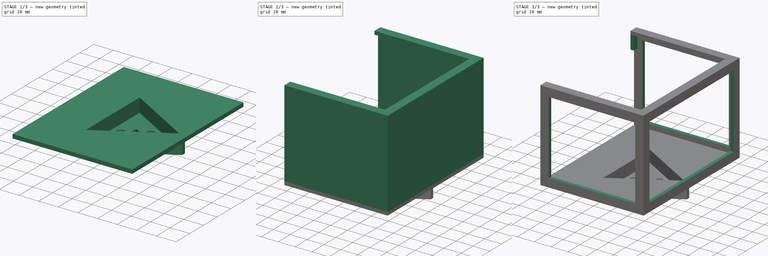
[diagram: build sequence overview — one tinted view per stage of 3, left to right]
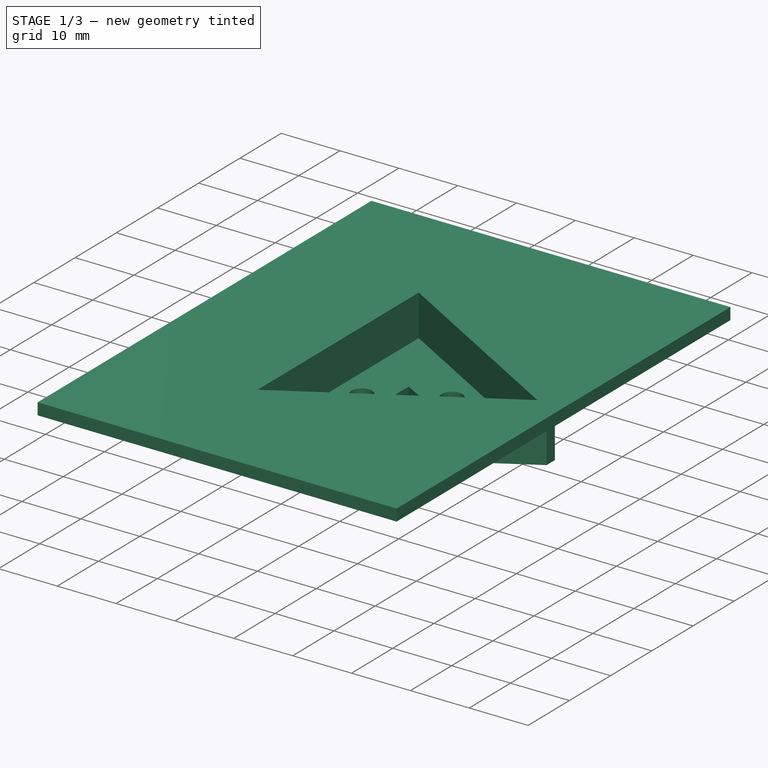
[diagram: stage 1 of 3 — iso view after this stage's code; geometry added in this stage tinted green]
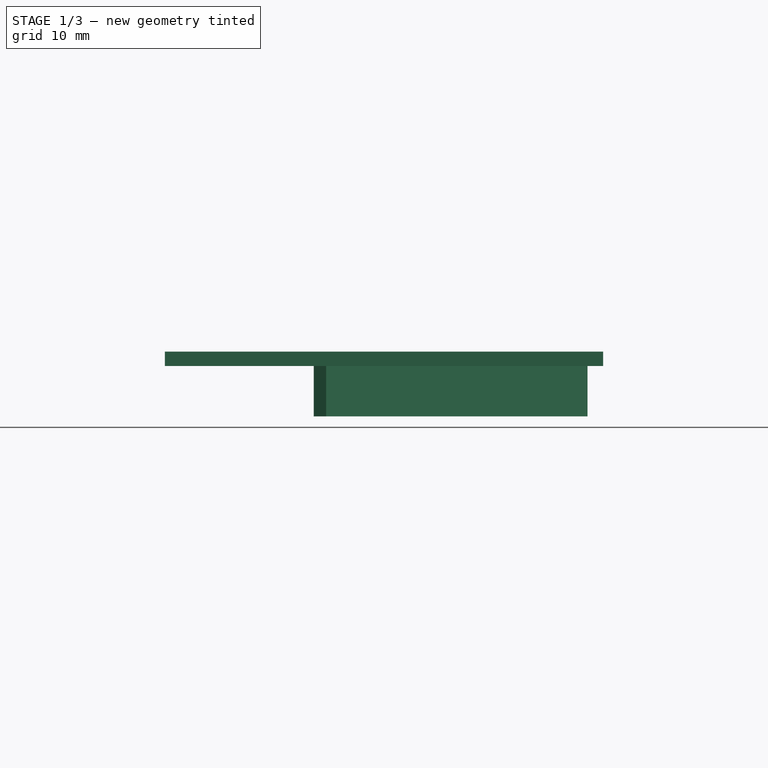
[diagram: stage 1 of 3 — front view after this stage's code; geometry added in this stage tinted green]
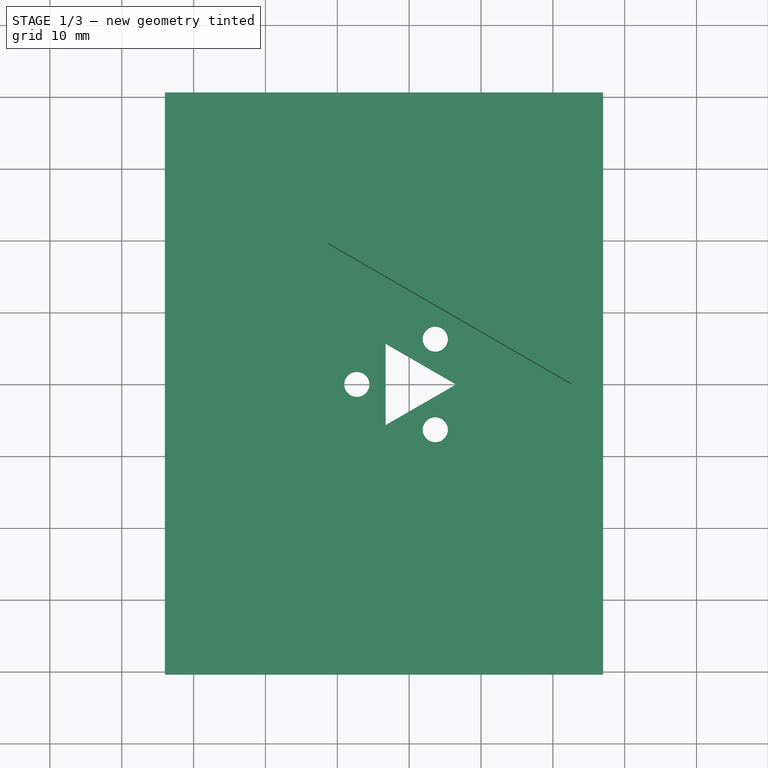
[diagram: stage 1 of 3 — top view after this stage's code; geometry added in this stage tinted green]
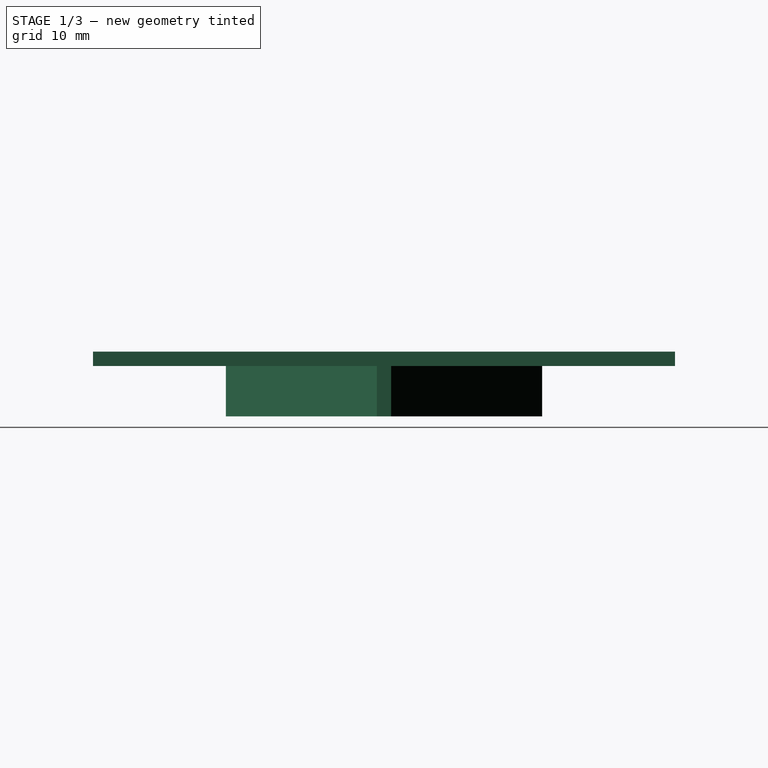
[diagram: stage 1 of 3 — right view after this stage's code; geometry added in this stage tinted green]
FCSTD DOCUMENT  (FreeCAD 0.19R)
Label: core2_2
License: All rights reserved
LicenseURL: http://en.wikipedia.org/wiki/All_rights_reserved
objects: Sketcher::SketchObject×8, PartDesign::Pad×6, PartDesign::Pocket×2, PartDesign::Body×1
note: 25 computed .brp shape members not serialized (recipe doc carries the construction recipe); baked Part::Feature solids carry a one-line shape summary decoded from their .brp

FEATURE [Sketcher::SketchObject] Sketch
  FullyConstrained = true
  MapMode = 5
  Support = -> [XY_Plane]
  sketch-geometry (21):
    g0: LineSegment StartX=26.5581 StartY=0 StartZ=0 EndX=-13.2791 EndY=23 EndZ=0
    g1: LineSegment StartX=-13.2791 StartY=23 StartZ=0 EndX=-13.2791 EndY=-23 EndZ=0
    g2: LineSegment StartX=-13.2791 StartY=-23 StartZ=0 EndX=26.5581 EndY=0 EndZ=0
    g3: Circle CenterX=0 CenterY=0 CenterZ=0 NormalX=0 NormalY=0 NormalZ=1 AngleXU=0 Radius=26.5581
    g4: LineSegment StartX=-7.27906 StartY=-9e-16 StartZ=0 EndX=3.63953 EndY=-6.30385 EndZ=0
    g5: LineSegment StartX=3.63953 StartY=-6.30385 StartZ=0 EndX=3.63953 EndY=6.30385 EndZ=0
    g6: LineSegment StartX=3.63953 StartY=6.30385 StartZ=0 EndX=-7.27906 EndY=-1.8e-15 EndZ=0
    g7: Circle CenterX=0 CenterY=0 CenterZ=0 NormalX=0 NormalY=0 NormalZ=1 AngleXU=0 Radius=7.27906
    g8: Circle CenterX=-7.27906 CenterY=-9e-16 CenterZ=0 NormalX=0 NormalY=0 NormalZ=1 AngleXU=0 Radius=1.75
    g9: Circle CenterX=3.63953 CenterY=6.30385 CenterZ=0 NormalX=0 NormalY=0 NormalZ=1 AngleXU=0 Radius=1.75
    g10: Circle CenterX=3.63953 CenterY=-6.30385 CenterZ=0 NormalX=0 NormalY=0 NormalZ=1 AngleXU=0 Radius=1.75
    g11: LineSegment StartX=-13.2791 StartY=21 StartZ=0 EndX=-13.2791 EndY=-21 EndZ=0
    g12: LineSegment StartX=-11.547 StartY=-22 StartZ=0 EndX=24.8261 EndY=-1 EndZ=0
    g13: LineSegment StartX=24.8261 StartY=1 StartZ=0 EndX=-11.547 EndY=22 EndZ=0
    g14: LineSegment StartX=-13.2791 StartY=21 StartZ=0 EndX=-11.547 EndY=22 EndZ=0
    g15: LineSegment StartX=24.8261 StartY=1 StartZ=0 EndX=24.8261 EndY=-1 EndZ=0
    g16: LineSegment StartX=-11.547 StartY=-22 StartZ=0 EndX=-13.2791 EndY=-21 EndZ=0
    g17: LineSegment StartX=6.55811 StartY=0 StartZ=0 EndX=-3.27906 EndY=5.67949 EndZ=0
    g18: LineSegment StartX=-3.27906 StartY=5.67949 StartZ=0 EndX=-3.27906 EndY=-5.67949 EndZ=0
    g19: LineSegment StartX=-3.27906 StartY=-5.67949 StartZ=0 EndX=6.55811 EndY=0 EndZ=0
    g20: Circle CenterX=0 CenterY=0 CenterZ=0 NormalX=0 NormalY=0 NormalZ=1 AngleXU=0 Radius=6.55811
  constraints (57):
    c: Coincident(g0,g1)
    c: Coincident(g1,g2)
    c: Coincident(g2,g0)
    c: Equal(g0,g1)
    c: Equal(g0,g2)
    c: PointOnObject(g0,g3)
    c: PointOnObject(g1,g3)
    c: PointOnObject(g2,g3)
    c: Coincident(g3,g-1)
    c: PointOnObject(g2,g-1)
    c: Distance(g1) = 46
    c: Coincident(g4,g5)
    c: Coincident(g5,g6)
    c: Coincident(g6,g4)
    c: Equal(g4,g5)
    c: Equal(g4,g6)
    c: PointOnObject(g4,g7)
    c: PointOnObject(g5,g7)
    c: PointOnObject(g6,g7)
    c: Coincident(g7,g-1)
    c: PointOnObject(g6,g-1)
    c: Distance(g4,g1) = 6
    c: Coincident(g8,g4)
    c: Coincident(g9,g5)
    c: Coincident(g10,g4)
    c: Diameter(g9) = 3.5
    c: Diameter(g10) = 3.5
    c: Diameter(g8) = 3.5
    c: PointOnObject(g11,g1)
    c: PointOnObject(g11,g1)
    c: PointOnObject(g12,g2)
    c: PointOnObject(g12,g2)
    c: PointOnObject(g13,g0)
    c: PointOnObject(g13,g0)
    c: Distance(g11,g0) = 2
    c: Distance(g13,g0) = 2
    c: Distance(g13,g0) = 2
    c: Distance(g12,g0) = 2
    c: Distance(g12,g1) = 2
    c: Distance(g11,g1) = 2
    c: Coincident(g14,g11)
    c: Coincident(g14,g13)
    c: Coincident(g15,g13)
    c: Coincident(g15,g12)
    c: Coincident(g16,g12)
    c: Coincident(g16,g11)
    c: Coincident(g17,g18)
    c: Coincident(g18,g19)
    c: Coincident(g19,g17)
    c: Equal(g17,g18)
    c: Equal(g17,g19)
    c: PointOnObject(g17,g20)
    c: PointOnObject(g18,g20)
    c: PointOnObject(g19,g20)
    c: Coincident(g20,g-1)
    c: PointOnObject(g19,g-1)
    c: Distance(g17,g13) = 10
FEATURE [PartDesign::Pad] Pad
  Direction = (1,1,1)
  Length = 2
  Length2 = 100
  Profile = -> Sketch
  Type = 0
FEATURE [Sketcher::SketchObject] Sketch001
  ExternalGeometry = -> [Pad]
  FullyConstrained = true
  MapMode = 5
  Placement = pos=(0,0,2) rot=(0,0,1;0rad)
  Support = -> [Pad]
  sketch-geometry (10):
    g0: LineSegment StartX=-13.2791 StartY=21 StartZ=0 EndX=-11.547 EndY=22 EndZ=0
    g1: LineSegment StartX=-11.547 StartY=22 StartZ=0 EndX=24.8261 EndY=1 EndZ=0
    g2: LineSegment StartX=24.8261 StartY=1 StartZ=0 EndX=24.8261 EndY=-1 EndZ=0
    g3: LineSegment StartX=24.8261 StartY=-1 StartZ=0 EndX=-11.547 EndY=-22 EndZ=0
    g4: LineSegment StartX=-11.547 StartY=-22 StartZ=0 EndX=-13.2791 EndY=-21 EndZ=0
    g5: LineSegment StartX=-13.2791 StartY=-21 StartZ=0 EndX=-13.2791 EndY=21 EndZ=0
    g6: LineSegment StartX=22.5581 StartY=0 StartZ=0 EndX=-11.2791 EndY=19.5359 EndZ=0
    g7: LineSegment StartX=-11.2791 StartY=19.5359 StartZ=0 EndX=-11.2791 EndY=-19.5359 EndZ=0
    g8: LineSegment StartX=-11.2791 StartY=-19.5359 StartZ=0 EndX=22.5581 EndY=0 EndZ=0
    g9: Circle CenterX=0 CenterY=0 CenterZ=0 NormalX=0 NormalY=0 NormalZ=1 AngleXU=0 Radius=22.5581
  constraints (23):
    c: Coincident(g-4,g0)
    c: Coincident(g0,g-3)
    c: Coincident(g0,g1)
    c: Coincident(g1,g-3)
    c: Coincident(g1,g2)
    c: Coincident(g2,g-5)
    c: Coincident(g2,g3)
    c: Coincident(g3,g-5)
    c: Coincident(g3,g4)
    c: Coincident(g4,g-4)
    c: Coincident(g4,g5)
    c: Coincident(g5,g0)
    c: Coincident(g6,g7)
    c: Coincident(g7,g8)
    c: Coincident(g8,g6)
    c: Equal(g6,g7)
    c: Equal(g6,g8)
    c: PointOnObject(g6,g9)
    c: PointOnObject(g7,g9)
    c: PointOnObject(g8,g9)
    c: Coincident(g9,g-1)
    c: PointOnObject(g8,g-1)
    c: Distance(g6,g1) = 2
FEATURE [PartDesign::Pad] Pad001
  BaseFeature = -> Pad
  Direction = (1,1,1)
  Length = 5
  Length2 = 100
  Profile = -> Sketch001
  Type = 0
FEATURE [Sketcher::SketchObject] Sketch002
  ExternalGeometry = -> [Pad001]
  FullyConstrained = true
  MapMode = 5
  Placement = pos=(0,0,7) rot=(0,0,1;0rad)
  Support = -> [Pad001]
  sketch-geometry (7):
    g0: LineSegment StartX=-34 StartY=40.5 StartZ=0 EndX=27 EndY=40.5 EndZ=0
    g1: LineSegment StartX=27 StartY=40.5 StartZ=0 EndX=27 EndY=-40.5 EndZ=0
    g2: LineSegment StartX=27 StartY=-40.5 StartZ=0 EndX=-34 EndY=-40.5 EndZ=0
    g3: LineSegment StartX=-34 StartY=-40.5 StartZ=0 EndX=-34 EndY=40.5 EndZ=0
    g4: LineSegment StartX=-11.2791 StartY=19.5359 StartZ=0 EndX=22.5581 EndY=0 EndZ=0
    g5: LineSegment StartX=22.5581 StartY=0 StartZ=0 EndX=-11.2791 EndY=-19.5359 EndZ=0
    g6: LineSegment StartX=-11.2791 StartY=-19.5359 StartZ=0 EndX=-11.2791 EndY=19.5359 EndZ=0
  constraints (18):
    c: Coincident(g0,g1)
    c: Coincident(g1,g2)
    c: Coincident(g2,g3)
    c: Coincident(g3,g0)
    c: Horizontal(g0)
    c: Horizontal(g2)
    c: Vertical(g1)
    c: Vertical(g3)
    c: Distance(g3) = 81
    c: Distance(g0) = 61
    c: Distance(g-1,g2) = 40.5
    c: Distance(g-1,g1) = 27
    c: Coincident(g-5,g4)
    c: Coincident(g4,g-4)
    c: Coincident(g4,g5)
    c: Coincident(g5,g-5)
    c: Coincident(g5,g6)
    c: Coincident(g6,g4)
FEATURE [PartDesign::Pad] Pad002
  BaseFeature = -> Pad001
  Direction = (1,1,1)
  Length = 2
  Length2 = 100
  Profile = -> Sketch002
  Type = 0
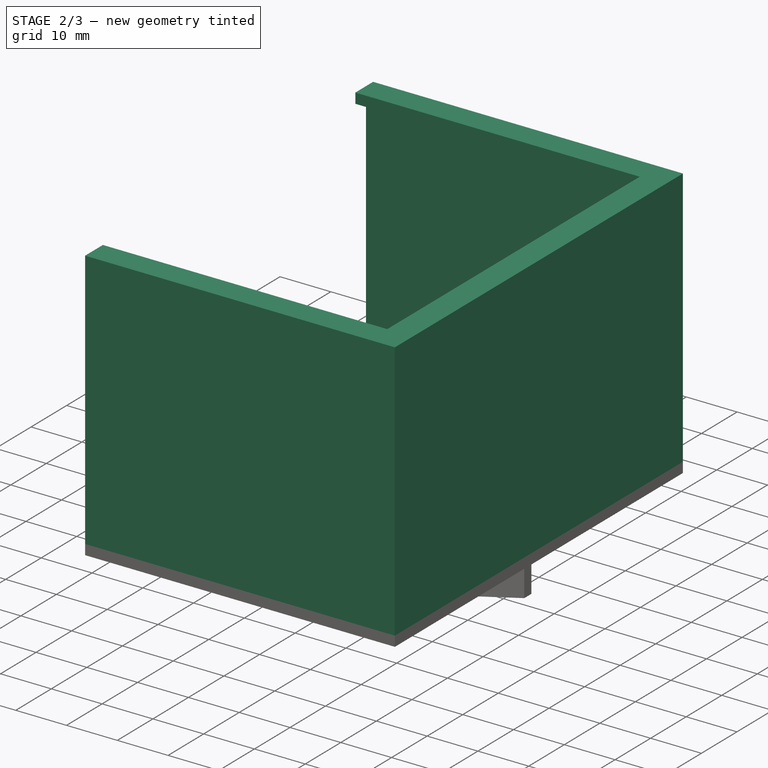
[diagram: stage 2 of 3 — iso view after this stage's code; geometry added in this stage tinted green]
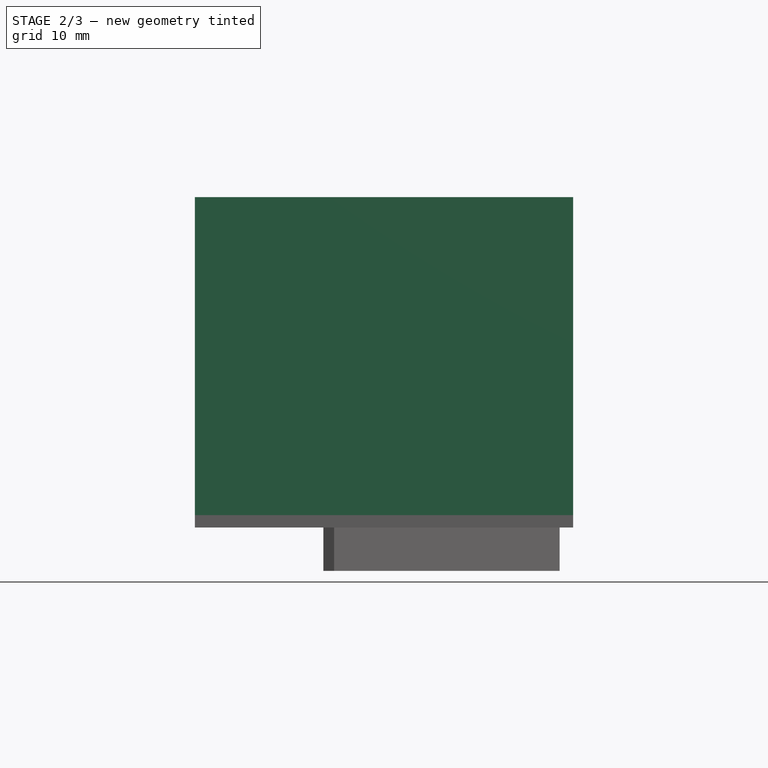
[diagram: stage 2 of 3 — front view after this stage's code; geometry added in this stage tinted green]
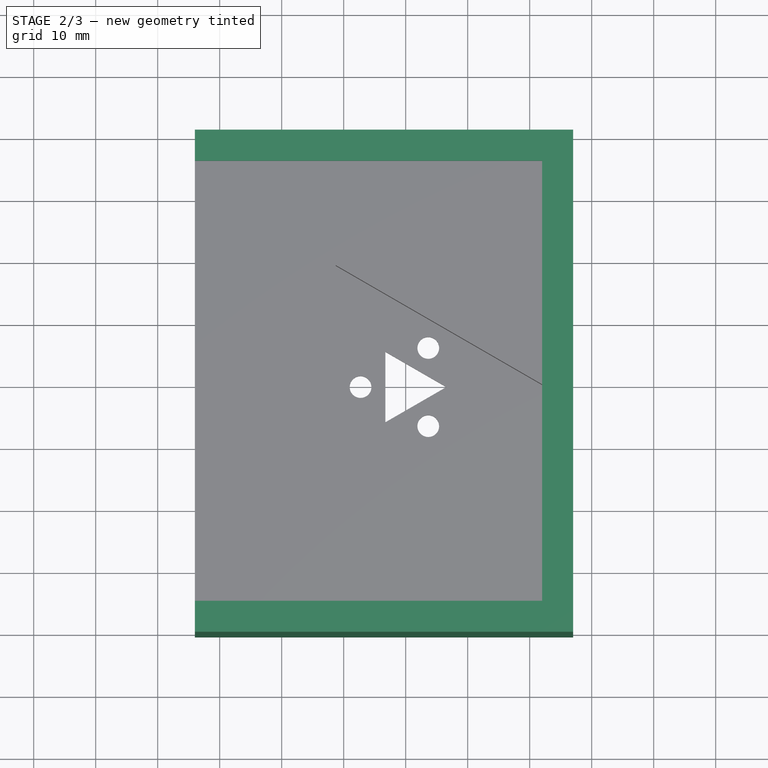
[diagram: stage 2 of 3 — top view after this stage's code; geometry added in this stage tinted green]
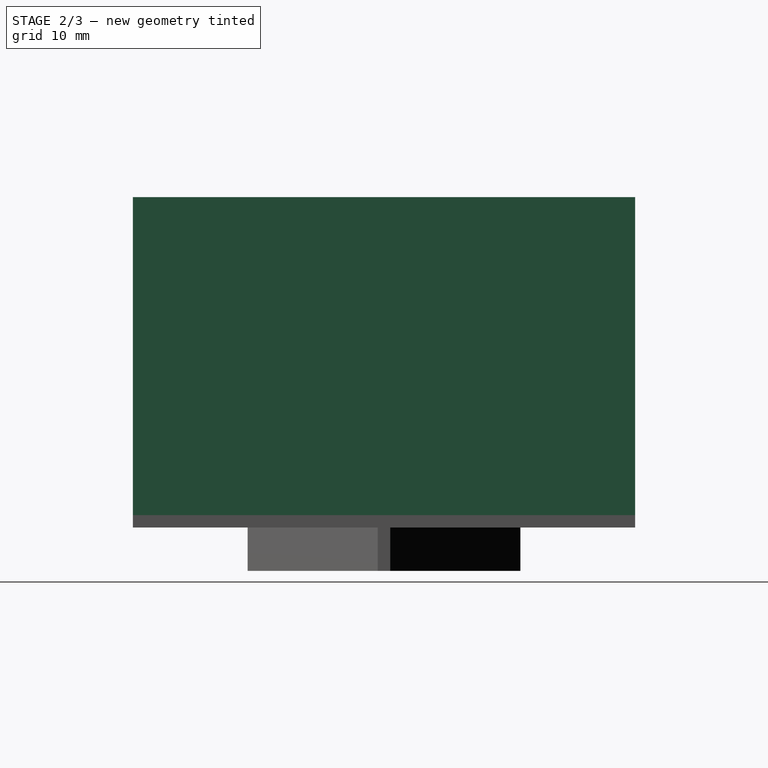
[diagram: stage 2 of 3 — right view after this stage's code; geometry added in this stage tinted green]
FEATURE [Sketcher::SketchObject] Sketch003
  ExternalGeometry = -> [Pad002]
  FullyConstrained = true
  MapMode = 5
  Placement = pos=(0,0,9) rot=(0,0,1;0rad)
  Support = -> [Pad002]
  sketch-geometry (8):
    g0: LineSegment StartX=-34 StartY=40.5 StartZ=0 EndX=27 EndY=40.5 EndZ=0
    g1: LineSegment StartX=27 StartY=40.5 StartZ=0 EndX=27 EndY=-40.5 EndZ=0
    g2: LineSegment StartX=27 StartY=-40.5 StartZ=0 EndX=-34 EndY=-40.5 EndZ=0
    g3: LineSegment StartX=-34 StartY=-40.5 StartZ=0 EndX=-34 EndY=-38.5 EndZ=0
    g4: LineSegment StartX=-34 StartY=38.5 StartZ=0 EndX=25 EndY=38.5 EndZ=0
    g5: LineSegment StartX=25 StartY=38.5 StartZ=0 EndX=25 EndY=-38.5 EndZ=0
    g6: LineSegment StartX=25 StartY=-38.5 StartZ=0 EndX=-34 EndY=-38.5 EndZ=0
    g7: LineSegment StartX=-34 StartY=38.5 StartZ=0 EndX=-34 EndY=40.5 EndZ=0
  constraints (19):
    c: Coincident(g-3,g0)
    c: Coincident(g0,g-3)
    c: Coincident(g0,g1)
    c: Coincident(g1,g-4)
    c: Coincident(g1,g2)
    c: Coincident(g2,g-4)
    c: Coincident(g2,g3)
    c: Coincident(g7,g0)
    c: Horizontal(g4)
    c: Coincident(g4,g5)
    c: Vertical(g5)
    c: Coincident(g5,g6)
    c: Horizontal(g6)
    c: Coincident(g3,g6)
    c: Coincident(g7,g4)
    c: Tangent(g3,g7)
    c: Distance(g7) = 2
    c: Distance(g3) = 2
    c: Distance(g4,g1) = 2
FEATURE [PartDesign::Pad] Pad003
  BaseFeature = -> Pad002
  Direction = (1,1,1)
  Length = 49.3
  Length2 = 100
  Profile = -> Sketch003
  Type = 0
FEATURE [Sketcher::SketchObject] Sketch004
  ExternalGeometry = -> [Pad003]
  FullyConstrained = true
  MapMode = 5
  Placement = pos=(0,0,58.3) rot=(0,0,1;0rad)
  Support = -> [Pad003]
  sketch-geometry (8):
    g0: LineSegment StartX=-34 StartY=40.5 StartZ=0 EndX=27 EndY=40.5 EndZ=0
    g1: LineSegment StartX=27 StartY=40.5 StartZ=0 EndX=27 EndY=-40.5 EndZ=0
    g2: LineSegment StartX=27 StartY=-40.5 StartZ=0 EndX=-34 EndY=-40.5 EndZ=0
    g3: LineSegment StartX=-34 StartY=-40.5 StartZ=0 EndX=-34 EndY=-35.5 EndZ=0
    g4: LineSegment StartX=-34 StartY=35.5 StartZ=0 EndX=22 EndY=35.5 EndZ=0
    g5: LineSegment StartX=22 StartY=35.5 StartZ=0 EndX=22 EndY=-35.5 EndZ=0
    g6: LineSegment StartX=22 StartY=-35.5 StartZ=0 EndX=-34 EndY=-35.5 EndZ=0
    g7: LineSegment StartX=-34 StartY=35.5 StartZ=0 EndX=-34 EndY=40.5 EndZ=0
  constraints (19):
    c: Coincident(g-3,g0)
    c: Coincident(g0,g-3)
    c: Coincident(g0,g1)
    c: Coincident(g1,g-4)
    c: Coincident(g1,g2)
    c: Coincident(g2,g-4)
    c: Coincident(g2,g3)
    c: Coincident(g7,g0)
    c: Horizontal(g4)
    c: Coincident(g4,g5)
    c: Vertical(g5)
    c: Coincident(g5,g6)
    c: Horizontal(g6)
    c: Coincident(g3,g6)
    c: Coincident(g7,g4)
    c: Tangent(g3,g7)
    c: Distance(g7) = 5
    c: Distance(g3) = 5
    c: Distance(g4,g1) = 5
FEATURE [PartDesign::Pad] Pad004
  BaseFeature = -> Pad003
  Direction = (1,1,1)
  Length = 2
  Length2 = 100
  Profile = -> Sketch004
  Type = 0
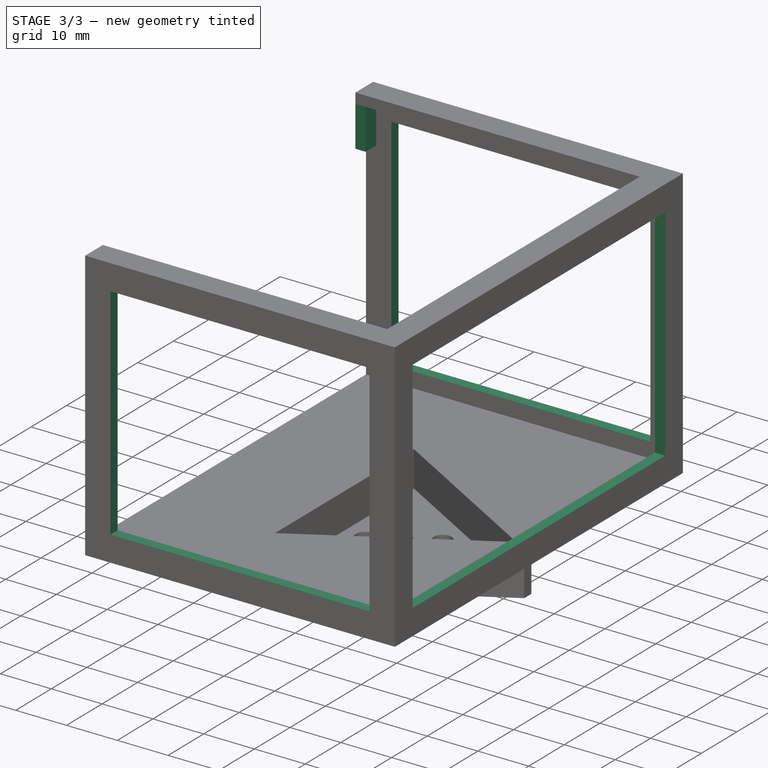
[diagram: stage 3 of 3 — iso view after this stage's code; geometry added in this stage tinted green]
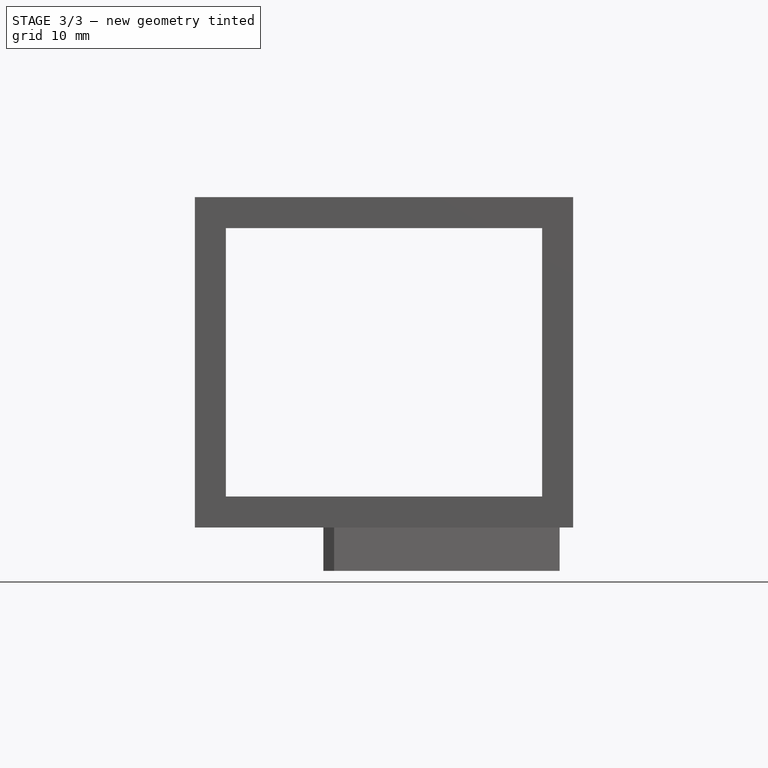
[diagram: stage 3 of 3 — front view after this stage's code; geometry added in this stage tinted green]
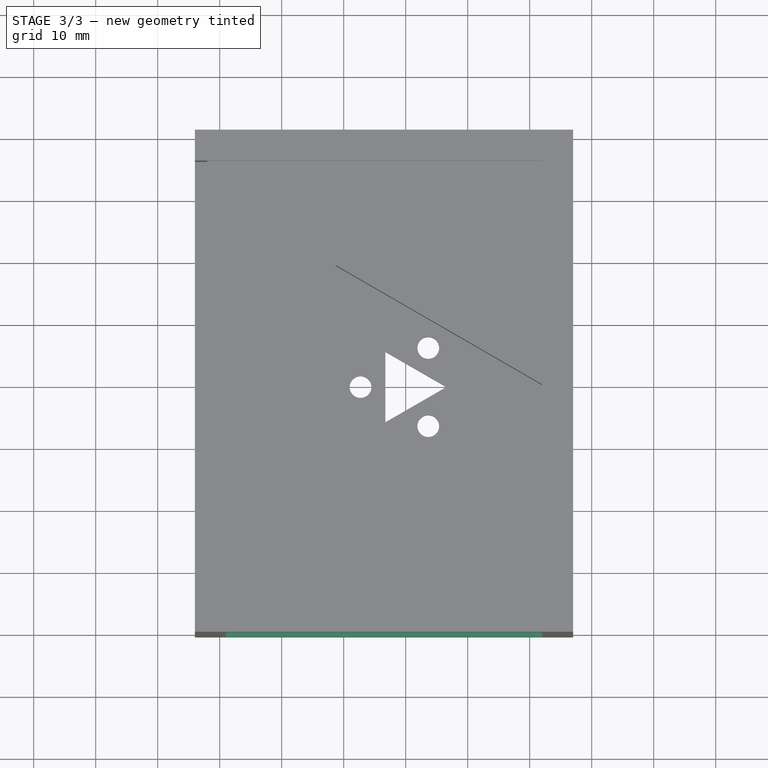
[diagram: stage 3 of 3 — top view after this stage's code; geometry added in this stage tinted green]
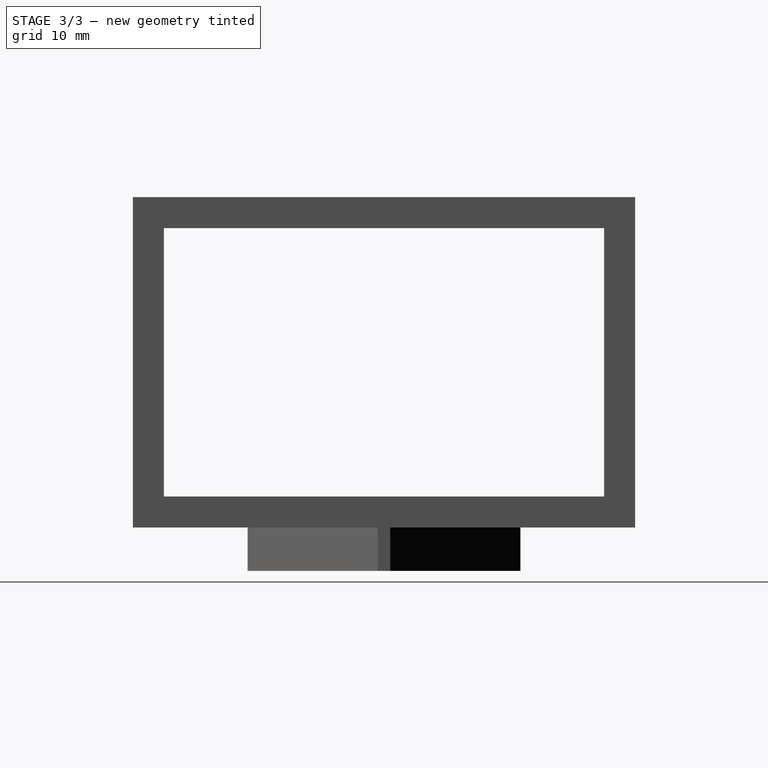
[diagram: stage 3 of 3 — right view after this stage's code; geometry added in this stage tinted green]
FEATURE [Sketcher::SketchObject] Sketch005
  ExternalGeometry = -> [Pad004]
  FullyConstrained = true
  MapMode = 5
  Placement = pos=(-34,0,0) rot=(0.57735,-0.57735,-0.57735;2.0944rad)
  Support = -> [Pad004]
  sketch-geometry (8):
    g0: LineSegment StartX=-40.5 StartY=60.3 StartZ=0 EndX=-35.5 EndY=60.3 EndZ=0
    g1: LineSegment StartX=-35.5 StartY=60.3 StartZ=0 EndX=-35.5 EndY=50.3 EndZ=0
    g2: LineSegment StartX=-35.5 StartY=50.3 StartZ=0 EndX=-40.5 EndY=50.3 EndZ=0
    g3: LineSegment StartX=-40.5 StartY=50.3 StartZ=0 EndX=-40.5 EndY=60.3 EndZ=0
    g4: LineSegment StartX=40.5 StartY=60.3 StartZ=0 EndX=35.5 EndY=60.3 EndZ=0
    g5: LineSegment StartX=35.5 StartY=60.3 StartZ=0 EndX=35.5 EndY=50.3 EndZ=0
    g6: LineSegment StartX=35.5 StartY=50.3 StartZ=0 EndX=40.5 EndY=50.3 EndZ=0
    g7: LineSegment StartX=40.5 StartY=50.3 StartZ=0 EndX=40.5 EndY=60.3 EndZ=0
  constraints (22):
    c: Coincident(g0,g1)
    c: Coincident(g1,g2)
    c: Coincident(g2,g3)
    c: Coincident(g3,g0)
    c: Horizontal(g0)
    c: Horizontal(g2)
    c: Vertical(g1)
    c: Vertical(g3)
    c: Coincident(g0,g-4)
    c: Distance(g0) = 5
    c: Distance(g3) = 10
    c: Coincident(g4,g5)
    c: Coincident(g5,g6)
    c: Coincident(g6,g7)
    c: Coincident(g7,g4)
    c: Horizontal(g4)
    c: Horizontal(g6)
    c: Vertical(g5)
    c: Vertical(g7)
    c: Coincident(g4,g-5)
    c: Distance(g4) = 5
    c: Distance(g7) = 10
FEATURE [Sketcher::SketchObject] Sketch006
  FullyConstrained = false
  MapMode = 5
  Placement = pos=(0,-40.5,0) rot=(1,0,0;1.5708rad)
  sketch-geometry (4):
    g0: LineSegment StartX=-29 StartY=55.3 StartZ=0 EndX=22 EndY=55.3 EndZ=0
    g1: LineSegment StartX=22 StartY=55.3 StartZ=0 EndX=22 EndY=12 EndZ=0
    g2: LineSegment StartX=22 StartY=12 StartZ=0 EndX=-29 EndY=12 EndZ=0
    g3: LineSegment StartX=-29 StartY=12 StartZ=0 EndX=-29 EndY=55.3 EndZ=0
  constraints (8):
    c: Coincident(g0,g1)
    c: Coincident(g1,g2)
    c: Coincident(g2,g3)
    c: Coincident(g3,g0)
    c: Horizontal(g0)
    c: Horizontal(g2)
    c: Vertical(g1)
    c: Vertical(g3)
FEATURE [Sketcher::SketchObject] Sketch007
  FullyConstrained = false
  MapMode = 5
  Placement = pos=(27,0,0) rot=(0.57735,0.57735,0.57735;2.0944rad)
  sketch-geometry (4):
    g0: LineSegment StartX=-35.5 StartY=55.3 StartZ=0 EndX=35.5 EndY=55.3 EndZ=0
    g1: LineSegment StartX=35.5 StartY=55.3 StartZ=0 EndX=35.5 EndY=12 EndZ=0
    g2: LineSegment StartX=35.5 StartY=12 StartZ=0 EndX=-35.5 EndY=12 EndZ=0
    g3: LineSegment StartX=-35.5 StartY=12 StartZ=0 EndX=-35.5 EndY=55.3 EndZ=0
  constraints (8):
    c: Coincident(g0,g1)
    c: Coincident(g1,g2)
    c: Coincident(g2,g3)
    c: Coincident(g3,g0)
    c: Horizontal(g0)
    c: Horizontal(g2)
    c: Vertical(g1)
    c: Vertical(g3)
FEATURE [PartDesign::Pad] Pad005
  BaseFeature = -> Pad004
  Direction = (1,1,1)
  Length = 2
  Length2 = 100
  Profile = -> Sketch005
  Reversed = true
  Type = 0
FEATURE [PartDesign::Pocket] Pocket
  BaseFeature = -> Pad005
  Length = 81
  Length2 = 100
  Profile = -> Sketch006
  Type = 0
FEATURE [PartDesign::Pocket] Pocket001
  BaseFeature = -> Pocket
  Length = 2
  Length2 = 100
  Profile = -> Sketch007
  Type = 0
FEATURE [PartDesign::Body] Body
  Group = -> [Sketch,Pad,Sketch001,Pad001,Sketch002,Pad002,Sketch003,Pad003,Sketch004,Pad004,Sketch005,Sketch006,Sketch007,Pad005,Pocket,Pocket001]
  Origin = -> Origin
  Tip = -> Pocket001
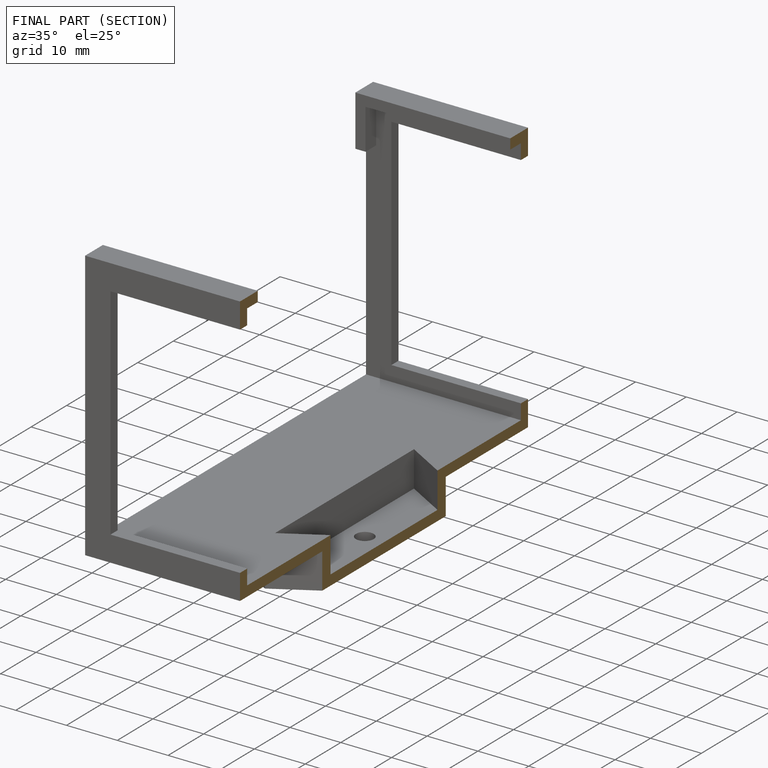
[diagram: finished part — half-section view (interior)]
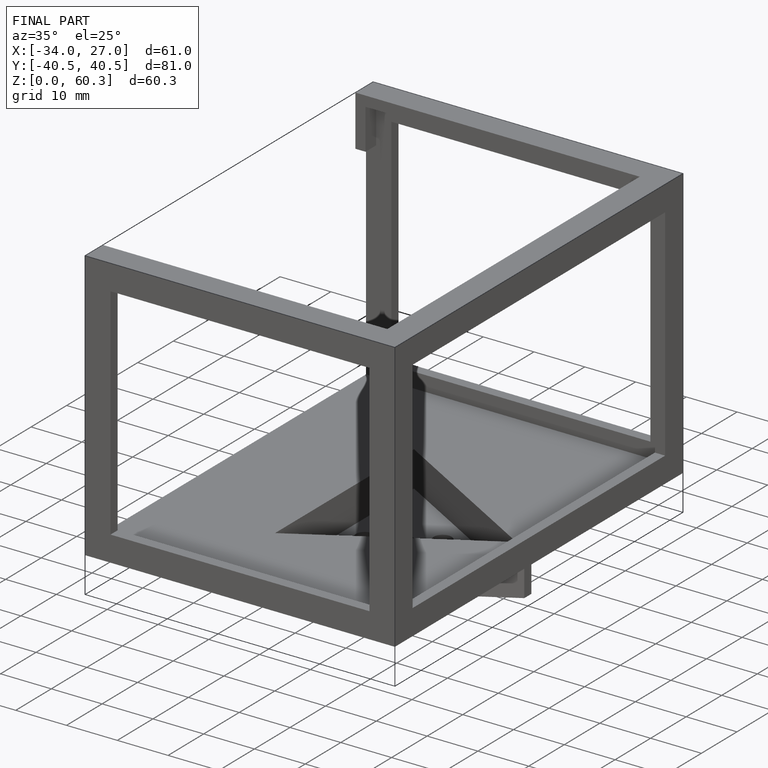
[diagram: finished part — iso view with bounding-box wireframe]
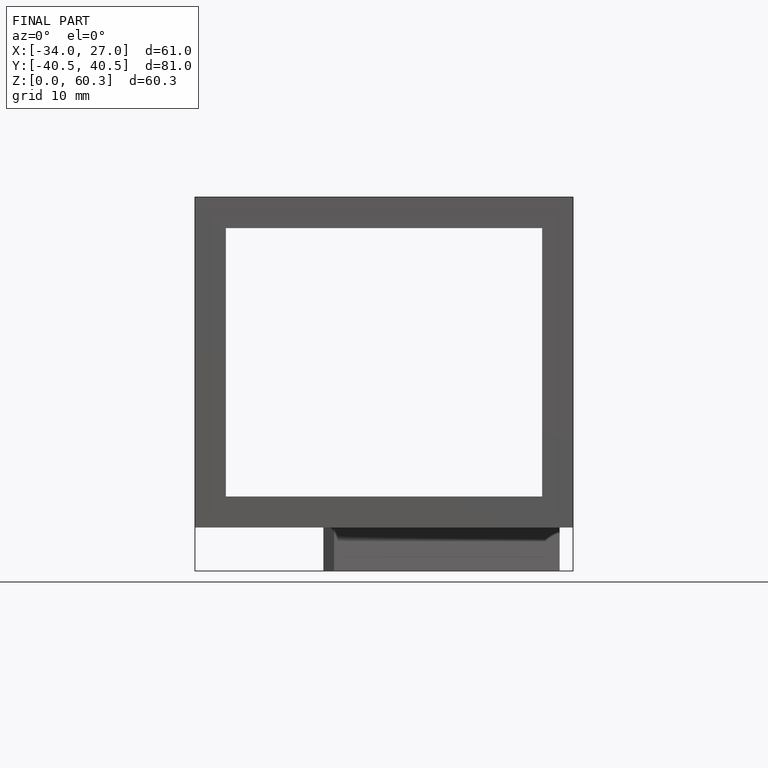
[diagram: finished part — front view with bounding-box wireframe]
